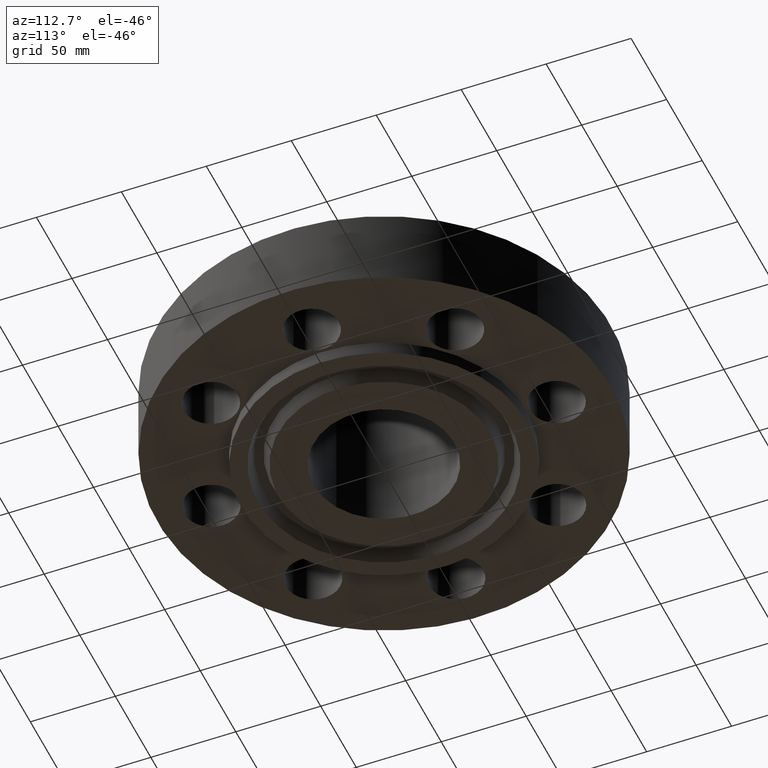
[diagram: clean part render]
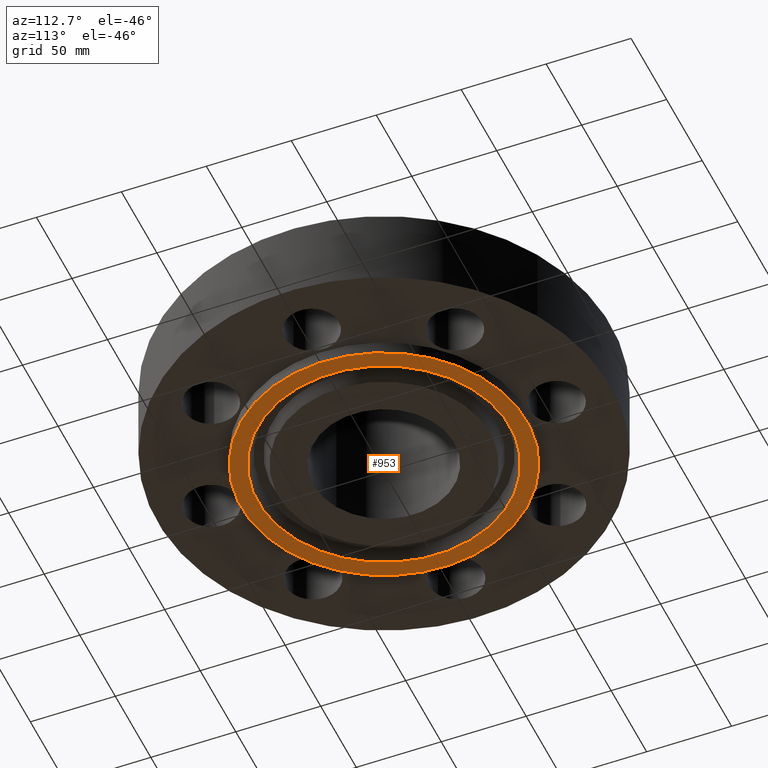
[diagram: same view with one face highlighted and labeled with its STEP entity id]
A machine part, auxiliary view. The second image highlights one B-rep face of the part: STEP entity #953.
In plain terms, the highlighted planar face has unit normal (0, 0, -1).
Its self-contained STEP definition (entity closure, byte-faithful):
#431=AXIS2_PLACEMENT_3D('Circle Axis2P3D',#429,#430,$) ;
#466=AXIS2_PLACEMENT_3D('Circle Axis2P3D',#464,#465,$) ;
#929=AXIS2_PLACEMENT_3D('Plane Axis2P3D',#926,#927,#928) ;
#937=AXIS2_PLACEMENT_3D('Circle Axis2P3D',#935,#936,$) ;
#946=AXIS2_PLACEMENT_3D('Circle Axis2P3D',#944,#945,$) ;
#429=CARTESIAN_POINT('Axis2P3D Location',(0.,0.,-0.313000000001)) ;
#433=CARTESIAN_POINT('Vertex',(-1.58809709663,-2.90699223627,-0.313000000001)) ;
#435=CARTESIAN_POINT('Vertex',(1.58809709663,2.90699223627,-0.313000000001)) ;
#464=CARTESIAN_POINT('Axis2P3D Location',(0.,0.,-0.313000000001)) ;
#926=CARTESIAN_POINT('Axis2P3D Location',(0.,1.63000000001,-0.313000000001)) ;
#935=CARTESIAN_POINT('Axis2P3D Location',(-1.39870617276E-016,-2.79741234551E-016,-0.313000000001)) ;
#939=CARTESIAN_POINT('Vertex',(1.40088142381,-2.56429624585,-0.313000000001)) ;
#941=CARTESIAN_POINT('Vertex',(-1.40088142381,2.56429624585,-0.313000000001)) ;
#944=CARTESIAN_POINT('Axis2P3D Location',(2.79741234551E-016,0.,-0.313000000001)) ;
#430=DIRECTION('Axis2P3D Direction',(0.,0.,-0.0393700787402)) ;
#465=DIRECTION('Axis2P3D Direction',(0.,0.,-0.0393700787402)) ;
#927=DIRECTION('Axis2P3D Direction',(0.,0.,-0.0393700787402)) ;
#928=DIRECTION('Axis2P3D XDirection',(0.0393700787402,0.,0.)) ;
#936=DIRECTION('Axis2P3D Direction',(0.,0.,-0.0393700787402)) ;
#945=DIRECTION('Axis2P3D Direction',(0.,0.,-0.0393700787402)) ;
#932=ORIENTED_EDGE('',*,*,#437,.T.) ;
#933=ORIENTED_EDGE('',*,*,#468,.T.) ;
#950=ORIENTED_EDGE('',*,*,#943,.F.) ;
#951=ORIENTED_EDGE('',*,*,#948,.F.) ;
#952=FACE_BOUND('',#949,.T.) ;
#953=ADVANCED_FACE('PartBody',(#934,#952),#930,.T.) ;
#432=CIRCLE('generated circle',#431,3.31250000001) ;
#467=CIRCLE('generated circle',#466,3.31250000001) ;
#938=CIRCLE('generated circle',#937,2.92200000001) ;
#947=CIRCLE('generated circle',#946,2.92200000001) ;
#437=EDGE_CURVE('',#434,#436,#432,.T.) ;
#468=EDGE_CURVE('',#436,#434,#467,.T.) ;
#943=EDGE_CURVE('',#940,#942,#938,.T.) ;
#948=EDGE_CURVE('',#942,#940,#947,.T.) ;
#931=EDGE_LOOP('',(#932,#933)) ;
#949=EDGE_LOOP('',(#950,#951)) ;
#934=FACE_OUTER_BOUND('',#931,.T.) ;
#930=PLANE('',#929) ;
#434=VERTEX_POINT('',#433) ;
#436=VERTEX_POINT('',#435) ;
#940=VERTEX_POINT('',#939) ;
#942=VERTEX_POINT('',#941) ;